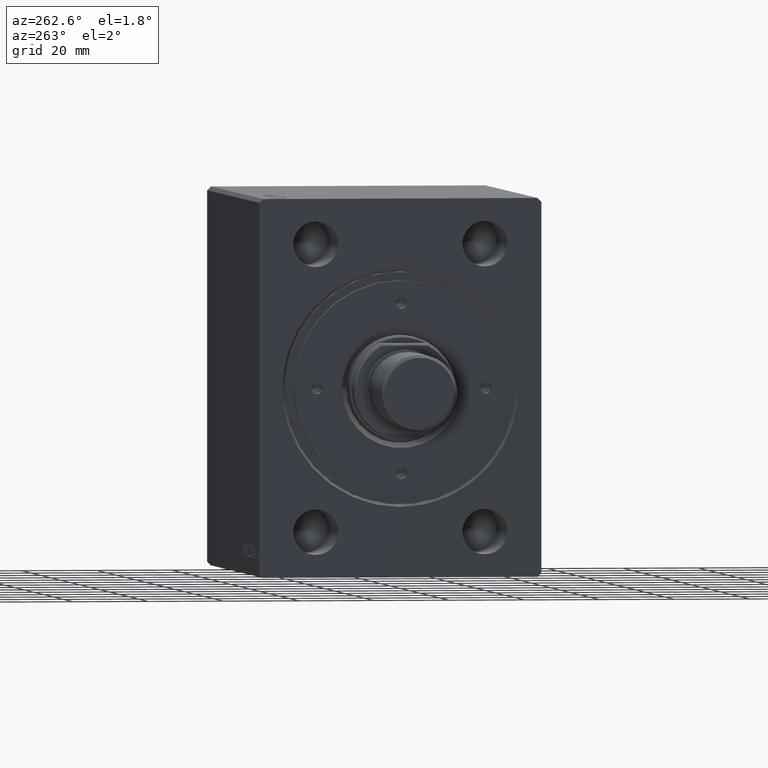
[diagram: clean part render]
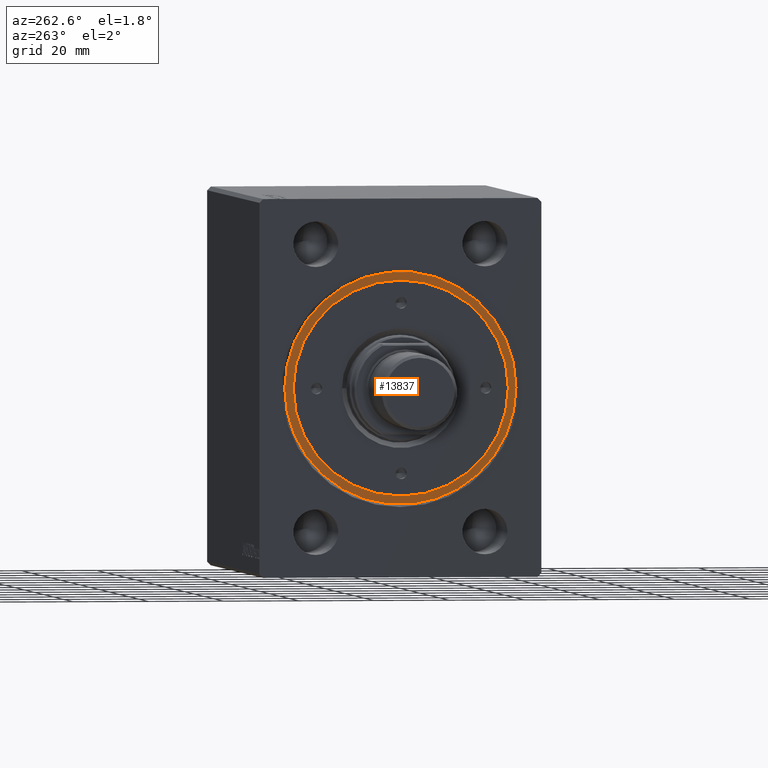
[diagram: same view with one face highlighted and labeled with its STEP entity id]
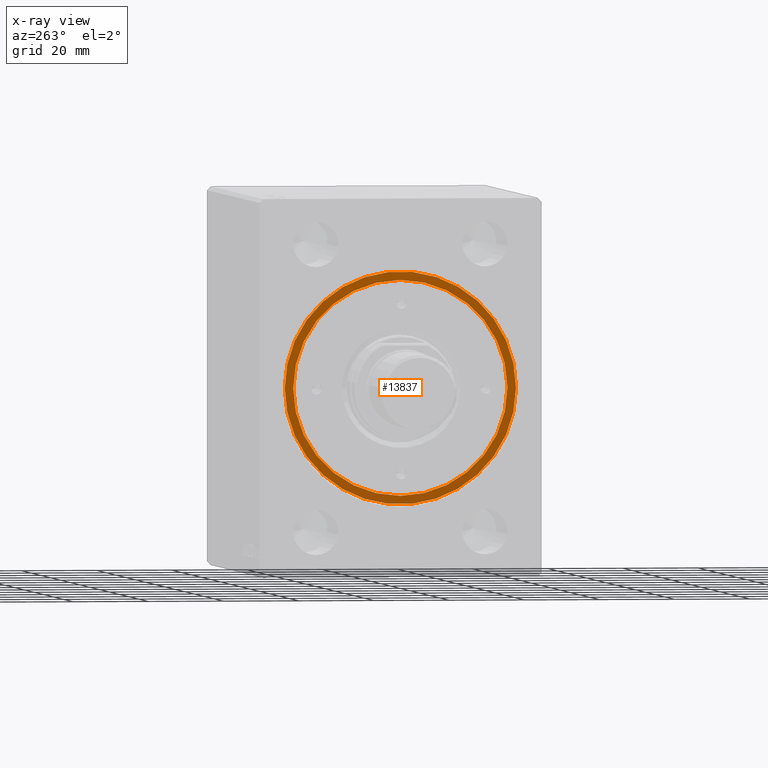
[diagram: x-ray of the same camera — body ghosted, the highlighted face saturated]
A machine part, auxiliary view. The second image highlights one B-rep face of the part: STEP entity #13837.
The next image is the same camera in x-ray: the body ghosted, the highlighted face saturated — about 0% of this face is hidden behind the body in this view.
In plain terms, the highlighted planar face has unit normal (-1, 0, 0).
Its self-contained STEP definition (entity closure, byte-faithful):
#1074 = AXIS2_PLACEMENT_3D ( 'NONE', #33424, #9149, #23327 ) ;
#1351 = CARTESIAN_POINT ( 'NONE',  ( -28.50000000000000000, 0.000000000000000000, 8.199999999999999289 ) ) ;
#1865 = DIRECTION ( 'NONE',  ( 0.000000000000000000, 0.000000000000000000, 1.000000000000000000 ) ) ;
#2098 = FACE_BOUND ( 'NONE', #34587, .T. ) ;
#2233 = CARTESIAN_POINT ( 'NONE',  ( -30.75000000000000355, 0.000000000000000000, 8.199999999999999289 ) ) ;
#3359 = AXIS2_PLACEMENT_3D ( 'NONE', #28272, #35449, #41734 ) ;
#4904 = ORIENTED_EDGE ( 'NONE', *, *, #26968, .T. ) ;
#5337 = EDGE_CURVE ( 'NONE', #14405, #25925, #5386, .T. ) ;
#5386 = CIRCLE ( 'NONE', #1074, 28.50000000000000000 ) ;
#6955 = CIRCLE ( 'NONE', #3359, 30.75000000000000355 ) ;
#8640 = DIRECTION ( 'NONE',  ( 0.000000000000000000, 0.000000000000000000, 1.000000000000000000 ) ) ;
#8737 = CIRCLE ( 'NONE', #39588, 30.75000000000000355 ) ;
#8946 = ORIENTED_EDGE ( 'NONE', *, *, #41965, .F. ) ;
#9149 = DIRECTION ( 'NONE',  ( 0.000000000000000000, 0.000000000000000000, 1.000000000000000000 ) ) ;
#11866 = EDGE_CURVE ( 'NONE', #38829, #44305, #8737, .T. ) ;
#12407 = AXIS2_PLACEMENT_3D ( 'NONE', #39416, #8640, #29104 ) ;
#13837 = ADVANCED_FACE ( 'NONE', ( #2098, #36502 ), #36048, .T. ) ;
#13907 = DIRECTION ( 'NONE',  ( 0.000000000000000000, 0.000000000000000000, 1.000000000000000000 ) ) ;
#14405 = VERTEX_POINT ( 'NONE', #16345 ) ;
#16275 = CARTESIAN_POINT ( 'NONE',  ( 0.000000000000000000, 0.000000000000000000, 8.199999999999999289 ) ) ;
#16345 = CARTESIAN_POINT ( 'NONE',  ( 28.50000000000000000, 3.490243377569956456E-15, 8.199999999999999289 ) ) ;
#17975 = CIRCLE ( 'NONE', #27306, 28.50000000000000000 ) ;
#21096 = CARTESIAN_POINT ( 'NONE',  ( 0.000000000000000000, 0.000000000000000000, 8.199999999999999289 ) ) ;
#23246 = DIRECTION ( 'NONE',  ( 1.000000000000000000, 0.000000000000000000, 0.000000000000000000 ) ) ;
#23327 = DIRECTION ( 'NONE',  ( 1.000000000000000000, 0.000000000000000000, 0.000000000000000000 ) ) ;
#25665 = EDGE_LOOP ( 'NONE', ( #26562, #4904 ) ) ;
#25925 = VERTEX_POINT ( 'NONE', #1351 ) ;
#26562 = ORIENTED_EDGE ( 'NONE', *, *, #11866, .T. ) ;
#26968 = EDGE_CURVE ( 'NONE', #44305, #38829, #6955, .T. ) ;
#27306 = AXIS2_PLACEMENT_3D ( 'NONE', #21096, #13907, #41530 ) ;
#28272 = CARTESIAN_POINT ( 'NONE',  ( 0.000000000000000000, 0.000000000000000000, 8.199999999999999289 ) ) ;
#29104 = DIRECTION ( 'NONE',  ( 1.000000000000000000, 0.000000000000000000, -0.000000000000000000 ) ) ;
#33424 = CARTESIAN_POINT ( 'NONE',  ( 0.000000000000000000, 0.000000000000000000, 8.199999999999999289 ) ) ;
#34048 = CARTESIAN_POINT ( 'NONE',  ( 30.75000000000000355, 3.765788907378111328E-15, 8.199999999999999289 ) ) ;
#34587 = EDGE_LOOP ( 'NONE', ( #8946, #42524 ) ) ;
#35449 = DIRECTION ( 'NONE',  ( 0.000000000000000000, 0.000000000000000000, 1.000000000000000000 ) ) ;
#36048 = PLANE ( 'NONE',  #12407 ) ;
#36502 = FACE_OUTER_BOUND ( 'NONE', #25665, .T. ) ;
#38829 = VERTEX_POINT ( 'NONE', #2233 ) ;
#39416 = CARTESIAN_POINT ( 'NONE',  ( 0.000000000000000000, 0.000000000000000000, 8.199999999999999289 ) ) ;
#39588 = AXIS2_PLACEMENT_3D ( 'NONE', #16275, #1865, #23246 ) ;
#41530 = DIRECTION ( 'NONE',  ( 1.000000000000000000, 0.000000000000000000, 0.000000000000000000 ) ) ;
#41734 = DIRECTION ( 'NONE',  ( 1.000000000000000000, 0.000000000000000000, 0.000000000000000000 ) ) ;
#41965 = EDGE_CURVE ( 'NONE', #25925, #14405, #17975, .T. ) ;
#42524 = ORIENTED_EDGE ( 'NONE', *, *, #5337, .F. ) ;
#44305 = VERTEX_POINT ( 'NONE', #34048 ) ;